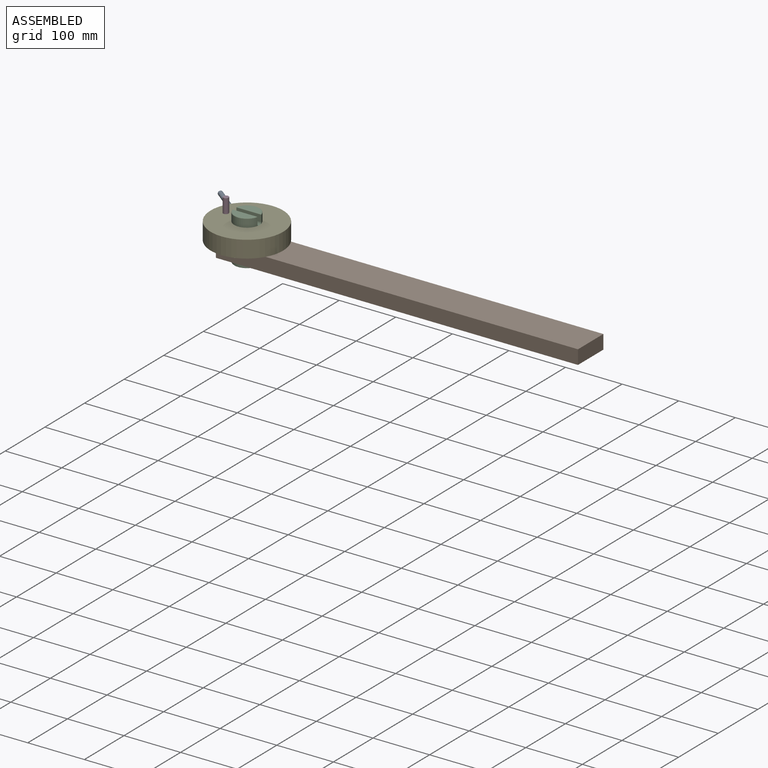
[diagram: assembled view]
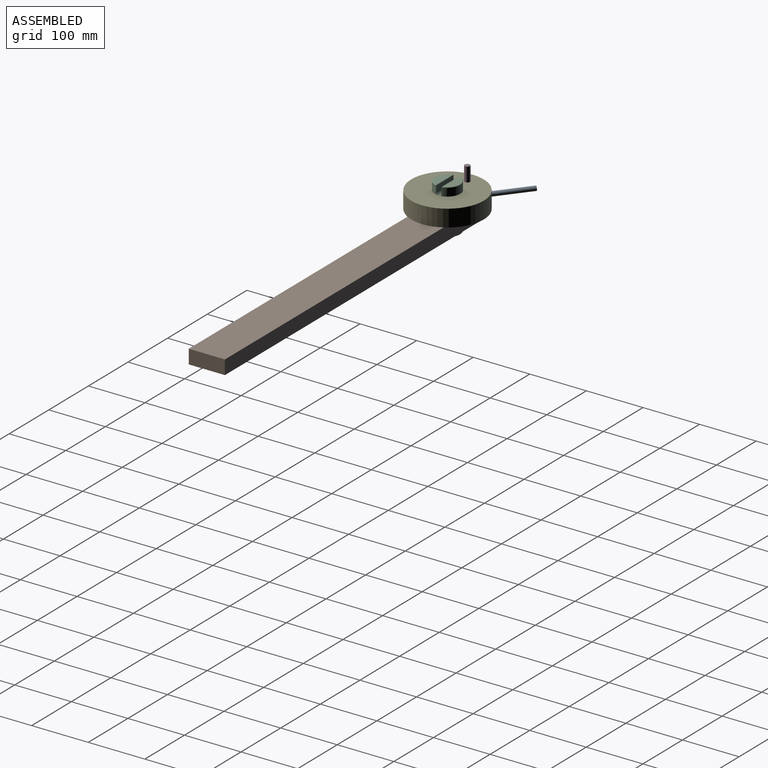
[diagram: assembled view, second angle]
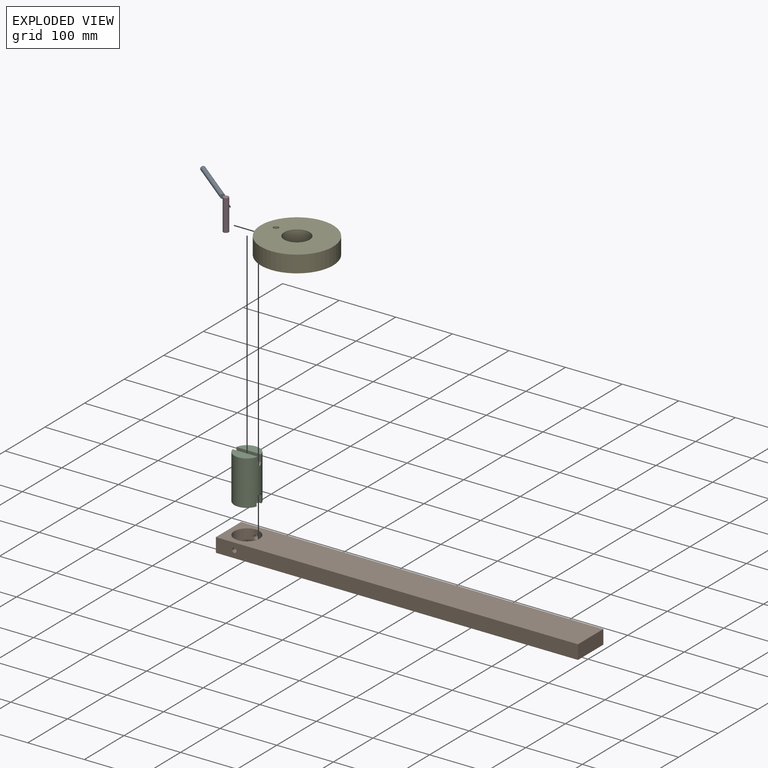
[diagram: exploded view]
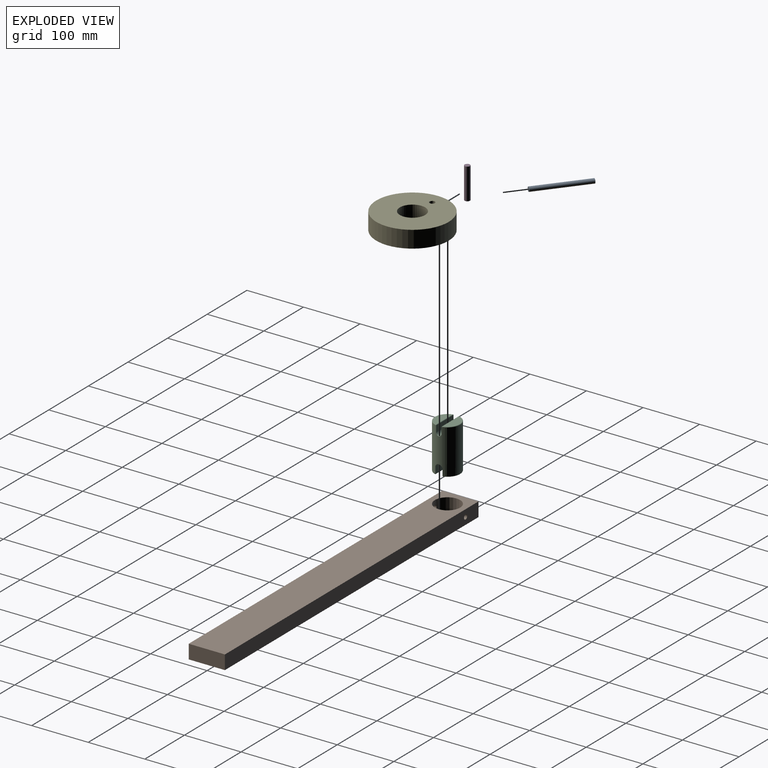
[diagram: exploded view, second angle]
ASSEMBLY  parts=5 mates=4
PART A: 3 faces, bbox 90.6x56.9x8 mm
  f0: cylinder r=4mm len=90.6mm, axis (0.87,-0.5,0), area 2513.3mm2, adj f1,f2
  f1: plane 8x6.93mm, normal (-0.87,0.5,0), area 50.3mm2, adj f0
  f2: plane 8x6.93mm, normal (0.87,-0.5,0), area 50.3mm2, adj f0
PART B: 9 faces, bbox 640x64x25 mm
  f0: cylinder r=22.52mm len=45.05mm, axis (0,0,1), area 3437.8mm2, adj f5,f6,f7,f8
  f1: plane 640x25mm, normal (0,-1,0), area 15949.7mm2, adj f2,f4,f5,f6,f7
  f2: plane 64x25mm, normal (1,0,0), area 1600mm2, adj f1,f3,f5,f6
  f3: plane 640x25mm, normal (0,1,0), area 15949.7mm2, adj f2,f4,f5,f6,f8
  f4: plane 64x25mm, normal (-1,0,0), area 1600mm2, adj f1,f3,f5,f6
  f5: plane 640x64mm, normal (0,0,1), area 39366mm2, adj f0,f1,f2,f3,f4
  f6: plane 640x64mm, normal (0,0,-1), area 39366mm2, adj f0,f1,f2,f3,f4
  f7: cylinder r=4mm len=9.83mm, axis (0,-1,0), area 242.6mm2, adj f0,f1
  f8: cylinder r=4mm len=9.83mm, axis (0,-1,0), area 242.6mm2, adj f0,f3
PART C: 19 faces, bbox 48.7x47.6x80 mm
  f0: plane 41.41x15.72mm, normal (0,0,1), area 480.4mm2, adj f11,f12
  f1: plane 40.39x14.13mm, normal (0,0,-1), area 415.3mm2, adj f13,f14
  f2: cylinder r=22.5mm len=78mm, axis (0,0,-1), area 10329.1mm2, adj f5,f6,f7,f8,f9,f10,f12,f14
  f3: plane 41.41x15.72mm, normal (0,0,1), area 480.4mm2, adj f17,f18
  f4: plane 40.39x14.13mm, normal (0,0,-1), area 415.3mm2, adj f15,f16
  f5: cylinder r=6.38mm len=45mm, axis (0,-1,0), area 882.9mm2, adj f2,f6,f7
  f6: plane 43.16x11mm, normal (1,0,0), area 474.7mm2, adj f2,f5,f16
  f7: plane 43.16x11mm, normal (-1,0,0), area 474.7mm2, adj f2,f5,f13
  f8: cylinder r=4.79mm len=45mm, axis (0,-1,0), area 668.7mm2, adj f2,f9,f10
  f9: plane 43.97x11mm, normal (-1,0,0), area 483.7mm2, adj f2,f8,f11
  f10: plane 43.97x11mm, normal (1,0,0), area 483.7mm2, adj f2,f8,f18
  f11: cylinder r=1mm len=43.97mm, axis (0,1,0), area 67.6mm2, adj f0,f9,f12
  f12: torus R=21.5mm, axis (0,0,1), area 92.9mm2, adj f0,f2,f11
  f13: cylinder r=1mm len=43.16mm, axis (0,1,0), area 66.2mm2, adj f1,f7,f14
  f14: torus R=21.5mm, axis (0,0,1), area 87.7mm2, adj f1,f2,f13
  f15: torus R=21.5mm, axis (0,0,1), area 87.7mm2, adj f2,f4,f16
  f16: cylinder r=1mm len=43.16mm, axis (0,-1,0), area 66.2mm2, adj f4,f6,f15
  f17: torus R=21.5mm, axis (0,0,1), area 92.9mm2, adj f2,f3,f18
  f18: cylinder r=1mm len=43.97mm, axis (0,-1,0), area 67.6mm2, adj f3,f10,f17
PART D: 3 faces, bbox 9.5x9.5x55.4 mm
  f0: plane 9.52x9.52mm, normal (0,0,-1), area 71.2mm2, adj f2
  f1: plane 9.52x9.52mm, normal (0,0,1), area 71.2mm2, adj f2
  f2: cylinder r=4.76mm len=55.4mm, axis (0,0,-1), area 1656.9mm2, adj f0,f1
PART E: 9 faces, bbox 128x128x30 mm
  f0: cylinder r=64mm len=128mm, axis (0,0,-1), area 11465.4mm2, adj f3,f4,f5,f7
  f1: cylinder r=4.76mm len=30mm, axis (0,0,-1), area 897.2mm2, adj f3,f4
  f2: cylinder r=22.52mm len=45.05mm, axis (0,0,-1), area 4245.9mm2, adj f3,f4
  f3: plane 128x128mm, normal (0,0,1), area 11202.8mm2, adj f0,f1,f2
  f4: plane 128x128mm, normal (0,0,-1), area 11202.8mm2, adj f0,f1,f2
  f5: cylinder r=9.75mm len=35.73mm, axis (-0.87,-0.5,0), area 1815mm2, adj f0,f6
  f6: cone r=0mm half-angle=59deg, axis (-0.87,-0.5,0), area 348.4mm2, adj f5
  f7: cylinder r=9.75mm len=35.73mm, axis (-0.87,0.5,0), area 1815mm2, adj f0,f8
  f8: cone r=0mm half-angle=59deg, axis (-0.87,0.5,0), area 348.4mm2, adj f7
PLACE A rot(axis=(0.56,0.83,0),180deg) t=(-813.58,577.33,187.34)mm
PLACE B t=(203.33,-130.15,107.34)mm fixed
PLACE C rot(axis=(0,0,-1),90deg) t=(-436.14,-705.63,72.34)mm
PLACE D rot(axis=(0,0,-1),8.3deg) t=(192.3,-217.77,107.34)mm
PLACE E rot(axis=(0,0,-1),8.3deg) t=(192.3,-217.77,107.34)mm
MATE fastened C.f2 <-> B.f0  axis (0,0,-1) through (-404.14,-98.15,98.34)mm
MATE revolute B.f0 <-> E.f0  axis (0,0,1) through (-404.14,-98.15,132.34)mm
MATE fastened E.f1 <-> D.f2  axis (0,0,-1) through (-445.5,-92.1,132.34)mm
MATE fastened A.f0 <-> E.f7  axis (0.78,-0.62,0) through (-430.82,-77.07,147.34)mm
